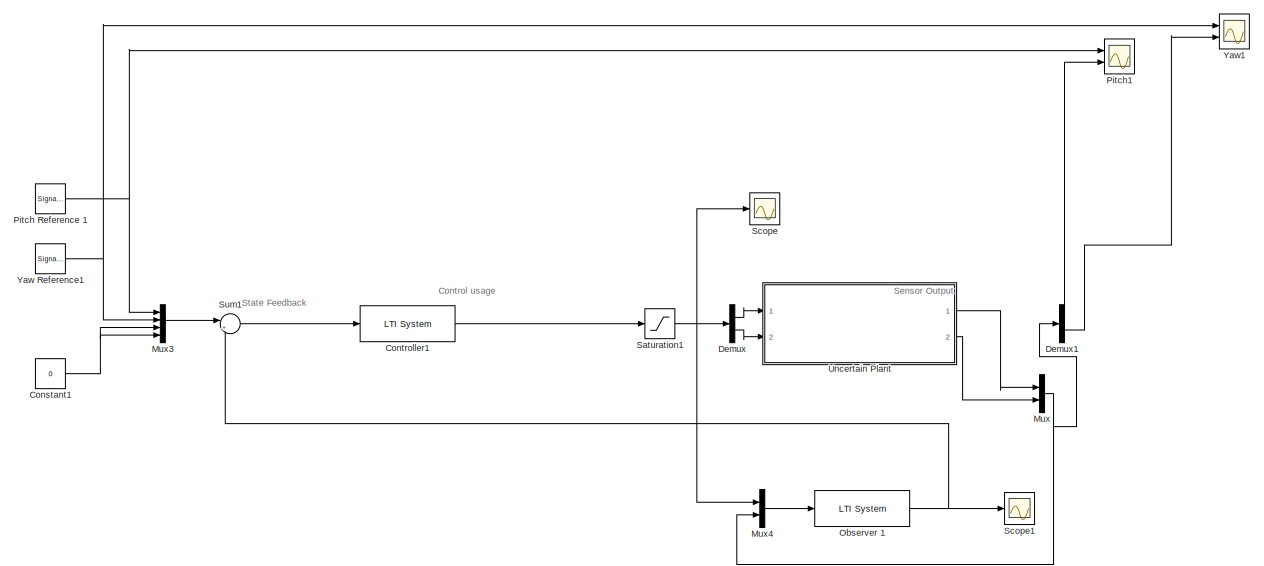
[diagram: root canvas - part 1/4, full width, top band]
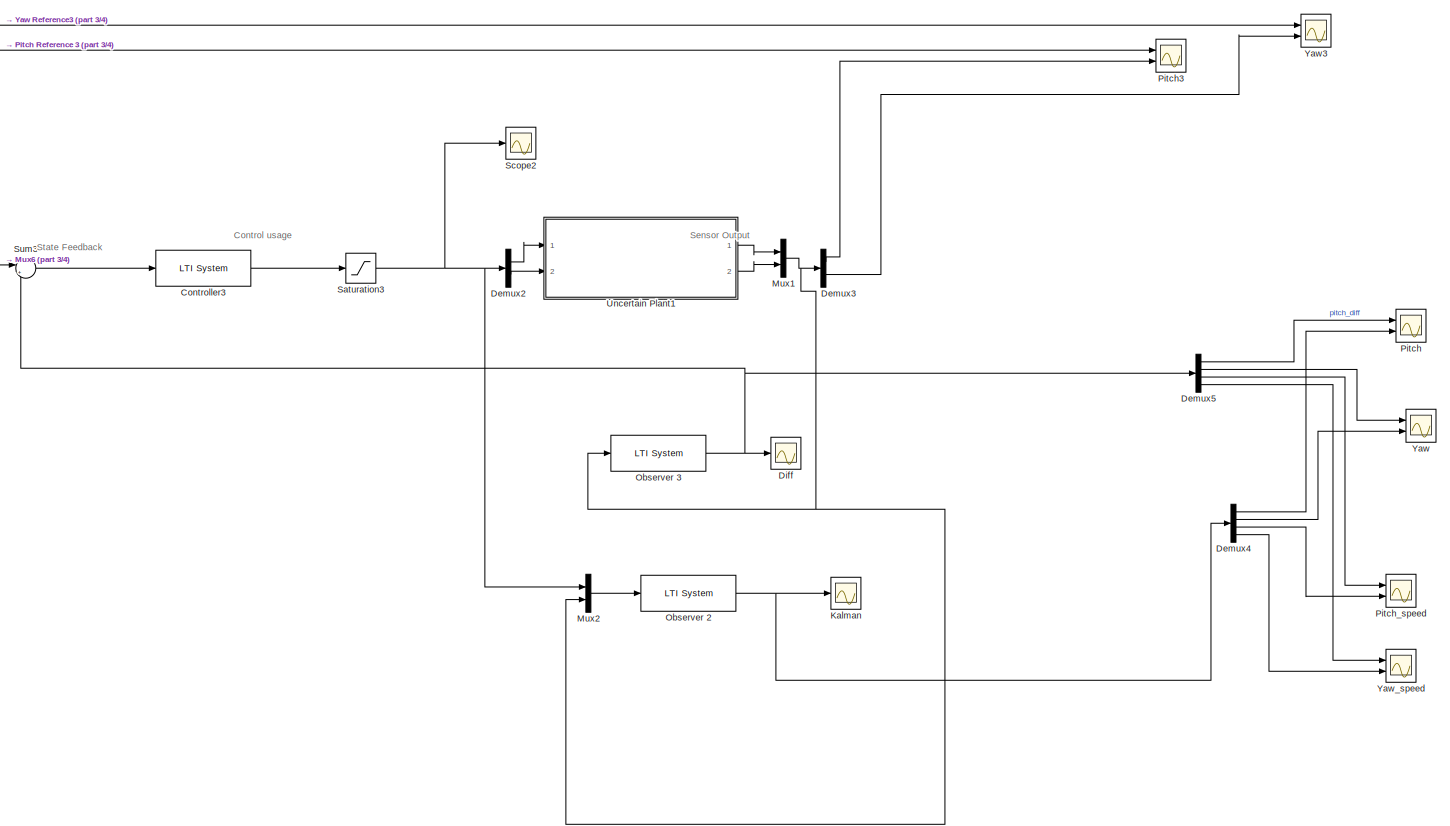
[diagram: root canvas - part 2/4, full width, middle band]
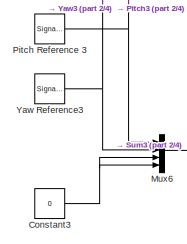
[diagram: root canvas - part 3/4, middle left region]
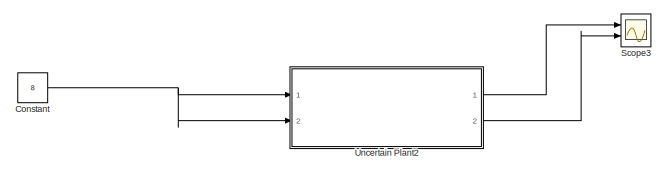
[diagram: root canvas - part 4/4, bottom center region]
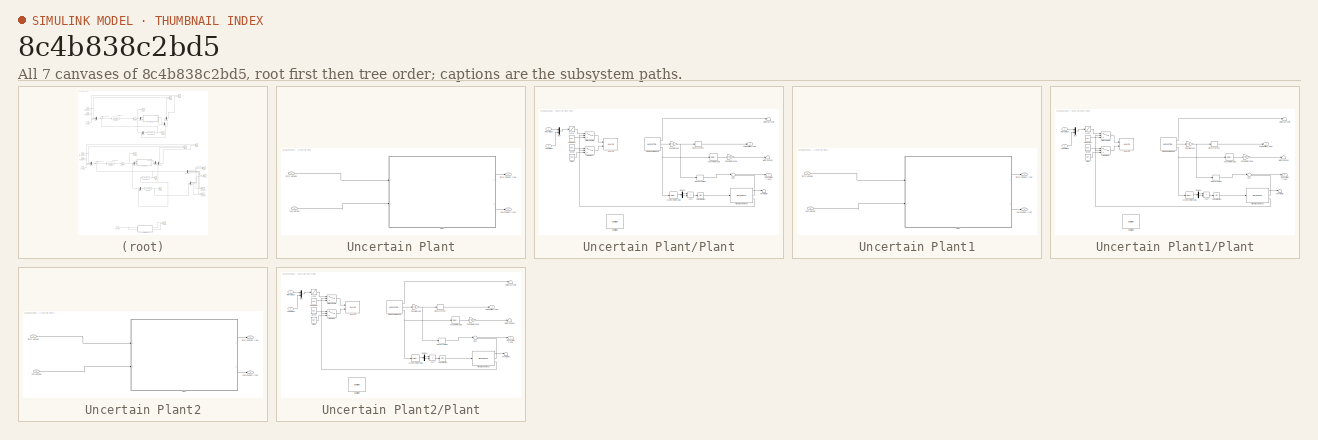
[diagram: thumbnail index - all 7 canvases of the model, root first then tree order]
MODEL slx_8c4b838c2bd5
KIND model
CONFIG AbsTol = auto
CONFIG EnableMultiTasking = on
CONFIG FixedStep = 0.002
CONFIG MaxStep = auto
CONFIG MinStep = auto
CONFIG RelTol = 1e-3
CONFIG SampleTimeConstraint = Unconstrained
CONFIG Solver = ode1
CONFIG SolverName = ode1
CONFIG StartTime = 0.0
CONFIG StopTime = 50
BLOCK [Constant] Constant
  Commented = on
  Value = 8
BLOCK [Constant] Constant1
  Commented = on
  Value = 0
BLOCK [Constant] Constant3
  Value = 0
BLOCK [Reference] Controller1  REF=cstblocks/LTI System
  Commented = on
  Ports = [1, 1]
  SourceBlock = cstblocks/LTI System
  SourceProductBaseCode = CT
  SourceProductName = Control System Toolbox
  SourceType = LTI Block
BLOCK [Reference] Controller3  REF=cstblocks/LTI System
  Ports = [1, 1]
  SourceBlock = cstblocks/LTI System
  SourceProductBaseCode = CT
  SourceProductName = Control System Toolbox
  SourceType = LTI Block
BLOCK [Demux] Demux
  Commented = on
  DisplayOption = bar
  Outputs = 2
  Ports = [1, 2]
BLOCK [Demux] Demux1
  Commented = on
  DisplayOption = bar
  Outputs = 2
  Ports = [1, 2]
BLOCK [Demux] Demux2
  DisplayOption = bar
  Outputs = 2
  Ports = [1, 2]
BLOCK [Demux] Demux3
  DisplayOption = bar
  Outputs = 2
  Ports = [1, 2]
BLOCK [Demux] Demux4
  DisplayOption = bar
  Ports = [1, 4]
BLOCK [Demux] Demux5
  DisplayOption = bar
  Ports = [1, 4]
BLOCK [Scope] Diff
  Floating = off
  NumInputPorts = 1
  Ports = [1]
  ScopeSpecificationString = Simulink.scopes.TimeScopeBlockCfg('CurrentConfiguration', extmgr.ConfigurationSet(extmgr.Configuration('Core','General UI',true,'FigureColor',[1 1 1]),extmgr.Configuration('Core','Source UI',true),extmgr.Configuration('Sources','WiredSimulink',true,'DataLoggingVariableName','ScopeData5'),extmgr.Configuration('Visuals','Time Domain',true,'SerializedDisplays',{struct('MinYLimReal','-2.33165','MaxYLi...<+1640ch>
BLOCK [Scope] Kalman 
  Floating = off
  NumInputPorts = 1
  Ports = [1]
  ScopeSpecificationString = Simulink.scopes.TimeScopeBlockCfg('CurrentConfiguration', extmgr.ConfigurationSet(extmgr.Configuration('Core','General UI',true,'FigureColor',[1 1 1]),extmgr.Configuration('Core','Source UI',true),extmgr.Configuration('Sources','WiredSimulink',true,'DataLoggingVariableName','ScopeData7'),extmgr.Configuration('Visuals','Time Domain',true,'SerializedDisplays',{struct('MinYLimReal','-7.47445','MaxYLi...<+1528ch>
BLOCK [Mux] Mux
  Commented = on
  DisplayOption = bar
  Inputs = 2
  Ports = [2, 1]
BLOCK [Mux] Mux1
  DisplayOption = bar
  Inputs = 2
  Ports = [2, 1]
BLOCK [Mux] Mux2
  DisplayOption = bar
  Inputs = 2
  Ports = [2, 1]
BLOCK [Mux] Mux3
  Commented = on
  DisplayOption = bar
  Ports = [4, 1]
BLOCK [Mux] Mux4
  Commented = on
  DisplayOption = bar
  Inputs = 2
  Ports = [2, 1]
BLOCK [Mux] Mux6
  DisplayOption = bar
  Ports = [4, 1]
BLOCK [Reference] Observer 1  REF=cstblocks/LTI System
  Commented = on
  Ports = [1, 1]
  SourceBlock = cstblocks/LTI System
  SourceProductBaseCode = CT
  SourceProductName = Control System Toolbox
  SourceType = LTI Block
BLOCK [Reference] Observer 2  REF=cstblocks/LTI System
  Ports = [1, 1]
  SourceBlock = cstblocks/LTI System
  SourceProductBaseCode = CT
  SourceProductName = Control System Toolbox
  SourceType = LTI Block
BLOCK [Reference] Observer 3  REF=cstblocks/LTI System
  Ports = [1, 1]
  SourceBlock = cstblocks/LTI System
  SourceProductBaseCode = CT
  SourceProductName = Control System Toolbox
  SourceType = LTI Block
BLOCK [Scope] Pitch
  Floating = off
  NumInputPorts = 2
  Ports = [2]
  ScopeSpecificationString = Simulink.scopes.TimeScopeBlockCfg('CurrentConfiguration', extmgr.ConfigurationSet(extmgr.Configuration('Core','General UI',true),extmgr.Configuration('Core','Source UI',true),extmgr.Configuration('Sources','WiredSimulink',true,'DataLoggingVariableName','ScopeData8'),extmgr.Configuration('Visuals','Time Domain',true,'SerializedDisplays',{struct('MinYLimReal','-3.63083','MaxYLimReal','3.5236','YLabe...<+1404ch>
BLOCK [SignalGenerator] Pitch Reference 1
  Amplitude = pitch_amp
  Commented = on
  Frequency = pitch_freq
  Ports = [0, 1]
  Units = rad/sec
  WaveForm = square
BLOCK [SignalGenerator] Pitch Reference 3
  Amplitude = pitch_amp
  Frequency = pitch_freq
  Ports = [0, 1]
  Units = rad/sec
  WaveForm = square
BLOCK [Scope] Pitch1
  Commented = on
  Floating = off
  NumInputPorts = 2
  Ports = [2]
  ScopeSpecificationString = Simulink.scopes.TimeScopeBlockCfg('CurrentConfiguration', extmgr.ConfigurationSet(extmgr.Configuration('Core','General UI',true,'FigureColor',[1 1 1]),extmgr.Configuration('Core','Source UI',true),extmgr.Configuration('Sources','WiredSimulink',true,'DataLoggingVariableName','ScopeData1'),extmgr.Configuration('Visuals','Time Domain',true,'SerializedDisplays',{struct('MinYLimReal','-0.70592','MaxYLi...<+1503ch>
BLOCK [Scope] Pitch3
  Floating = off
  NumInputPorts = 2
  Ports = [2]
  ScopeSpecificationString = Simulink.scopes.TimeScopeBlockCfg('CurrentConfiguration', extmgr.ConfigurationSet(extmgr.Configuration('Core','General UI',true,'FigureColor',[1 1 1]),extmgr.Configuration('Core','Source UI',true),extmgr.Configuration('Sources','WiredSimulink',true,'DataLoggingVariableName','ScopeData4'),extmgr.Configuration('Visuals','Time Domain',true,'SerializedDisplays',{struct('MinYLimReal','-0.85025','MaxYLi...<+1499ch>
BLOCK [Scope] Pitch_speed
  Floating = off
  NumInputPorts = 2
  Ports = [2]
  ScopeSpecificationString = Simulink.scopes.TimeScopeBlockCfg('CurrentConfiguration', extmgr.ConfigurationSet(extmgr.Configuration('Core','General UI',true),extmgr.Configuration('Core','Source UI',true),extmgr.Configuration('Sources','WiredSimulink',true,'DataLoggingVariableName','ScopeData10'),extmgr.Configuration('Visuals','Time Domain',true,'SerializedDisplays',{struct('MinYLimReal','-4.47207','MaxYLimReal','4.75336','YLa...<+1406ch>
BLOCK [Saturate] Saturation1
  Commented = on
  InputPortMap = u0
  LowerLimit = -25
  Ports = [1, 1]
  UpperLimit = 25
BLOCK [Saturate] Saturation3
  InputPortMap = u0
  LowerLimit = -25
  Ports = [1, 1]
  UpperLimit = 25
BLOCK [Scope] Scope
  Commented = on
  Floating = off
  NumInputPorts = 1
  Ports = [1]
  ScopeSpecificationString = Simulink.scopes.TimeScopeBlockCfg('CurrentConfiguration', extmgr.ConfigurationSet(extmgr.Configuration('Core','General UI',true),extmgr.Configuration('Core','Source UI',true),extmgr.Configuration('Sources','WiredSimulink',true),extmgr.Configuration('Visuals','Time Domain',true,'SerializedDisplays',{struct('MinYLimReal','-31.25','MaxYLimReal','31.25','YLabelReal','','MinYLimMag','0.00000','MaxYLimM...<+1364ch>
BLOCK [Scope] Scope1
  Commented = on
  Floating = off
  NumInputPorts = 1
  Ports = [1]
  ScopeSpecificationString = Simulink.scopes.TimeScopeBlockCfg('CurrentConfiguration', extmgr.ConfigurationSet(extmgr.Configuration('Core','General UI',true,'FigureColor',[1 1 1]),extmgr.Configuration('Core','Source UI',true),extmgr.Configuration('Sources','WiredSimulink',true,'DataLoggingVariableName','ScopeData2'),extmgr.Configuration('Visuals','Time Domain',true,'SerializedDisplays',{struct('MinYLimReal','-2.51916','MaxYLi...<+1502ch>
BLOCK [Scope] Scope2
  Floating = off
  NumInputPorts = 1
  Ports = [1]
  ScopeSpecificationString = Simulink.scopes.TimeScopeBlockCfg('CurrentConfiguration', extmgr.ConfigurationSet(extmgr.Configuration('Core','General UI',true),extmgr.Configuration('Core','Source UI',true),extmgr.Configuration('Sources','WiredSimulink',true,'DataLoggingVariableName','ScopeData12'),extmgr.Configuration('Visuals','Time Domain',true,'SerializedDisplays',{struct('MinYLimReal','-31.25','MaxYLimReal','31.25','YLabelR...<+1403ch>
BLOCK [Scope] Scope3
  Commented = on
  Floating = off
  NumInputPorts = 2
  Ports = [2]
  ScopeSpecificationString = Simulink.scopes.TimeScopeBlockCfg('CurrentConfiguration', extmgr.ConfigurationSet(extmgr.Configuration('Core','General UI',true),extmgr.Configuration('Core','Source UI',true),extmgr.Configuration('Sources','WiredSimulink',true,'DataLoggingVariableName','ScopeData13'),extmgr.Configuration('Visuals','Time Domain',true),extmgr.Configuration('Tools','Plot Navigation',true),extmgr.Configuration('Tools'...<+41ch>
BLOCK [Sum] Sum1
  Commented = on
  IconShape = round
  InputSameDT = off
  Inputs = |+-
  OutDataTypeStr = Inherit: Inherit via internal rule
  Ports = [2, 1]
  SaturateOnIntegerOverflow = off
BLOCK [Sum] Sum3
  IconShape = round
  InputSameDT = off
  Inputs = |+-
  OutDataTypeStr = Inherit: Inherit via internal rule
  Ports = [2, 1]
  SaturateOnIntegerOverflow = off
BLOCK [SubSystem] Uncertain Plant
  Commented = on
  Ports = [2, 2]
  RequestExecContextInheritance = off
BLOCK [Outport] Uncertain Plant/Pitch Position (rad)
  IconDisplay = Port number
BLOCK [Inport] Uncertain Plant/Pitch Voltage
  IconDisplay = Port number
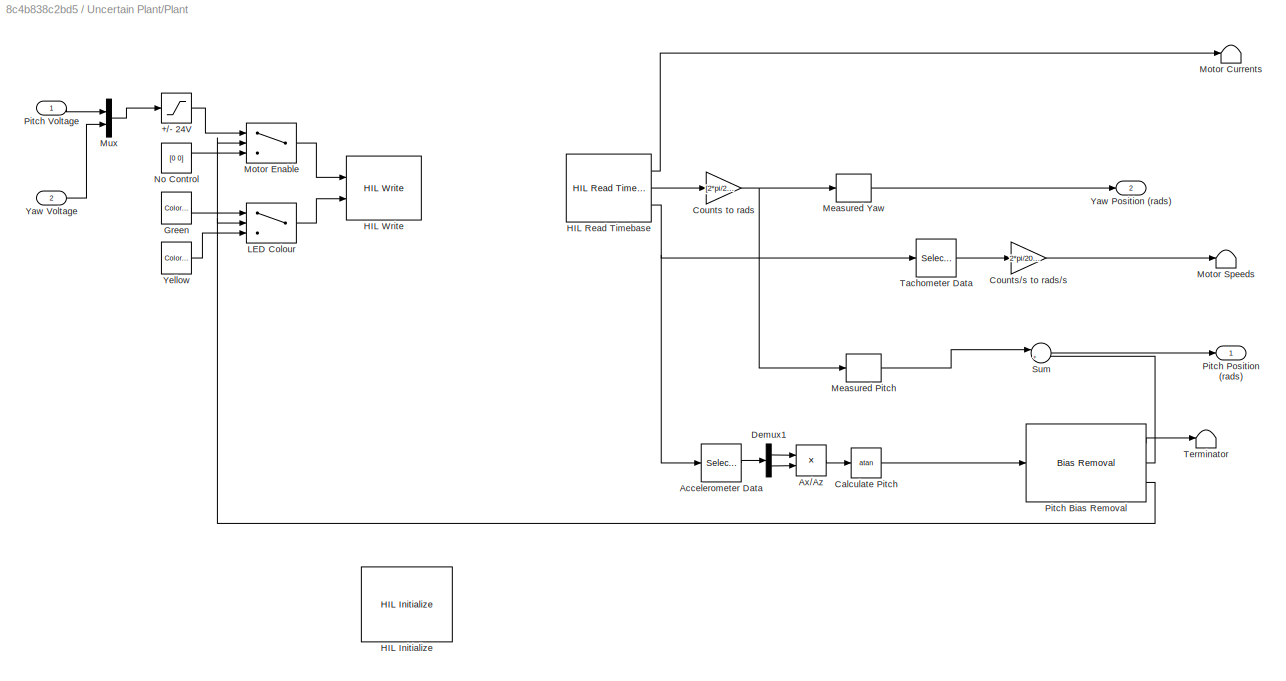
BLOCK [SubSystem] Uncertain Plant/Plant
  Ports = [2, 2]
  RequestExecContextInheritance = off
BLOCK [Saturate] Uncertain Plant/Plant/+//- 24V
  InputPortMap = u0
  LowerLimit = -24
  Ports = [1, 1]
  UpperLimit = 24
BLOCK [Selector] Uncertain Plant/Plant/Accelerometer Data
  IndexOptions = Index vector (dialog)
  Indices = [1 2]
  InputPortWidth = 4
  OutputSizes = 1
  Ports = [1, 1]
BLOCK [Product] Uncertain Plant/Plant/Ax//Az
  InputSameDT = off
  Inputs = */
  OutDataTypeStr = Inherit: Inherit via internal rule
  Ports = [2, 1]
  RndMeth = Floor
  SaturateOnIntegerOverflow = off
BLOCK [Trigonometry] Uncertain Plant/Plant/Calculate Pitch
  Operator = atan
  Ports = [1, 1]
BLOCK [Gain] Uncertain Plant/Plant/Counts to rads
  Gain = [2*pi/2048 2*pi/4096]
  OutDataTypeStr = Inherit: Inherit via internal rule
  ParamDataTypeStr = Inherit: Inherit via internal rule
  SaturateOnIntegerOverflow = off
BLOCK [Gain] Uncertain Plant/Plant/Counts//s to rads//s
  Gain = 2*pi/2048
  OutDataTypeStr = Inherit: Inherit via internal rule
  ParamDataTypeStr = Inherit: Inherit via internal rule
  SaturateOnIntegerOverflow = off
BLOCK [Demux] Uncertain Plant/Plant/Demux1
  DisplayOption = bar
  Outputs = 2
  Ports = [1, 2]
BLOCK [Reference] Uncertain Plant/Plant/Green  REF=quarc_library/Sources/Signals/Color Constant
  Ports = [0, 1]
  SourceBlock = quarc_library/Sources/Signals/Color Constant
  SourceProductName = QUARC Targets
  SourceType = Color Constant
BLOCK [Reference] Uncertain Plant/Plant/HIL Initialize  REF=quarc_library/Data Acquisition/Generic/Configuration/HIL Initialize
  AttributesFormatString = %<object_name> (%<board_type>-%<board_number>)
  Ports = []
  Priority = -99
  SourceBlock = quarc_library/Data Acquisition/Generic/Configuration/HIL Initialize
  SourceProductName = QUARC Targets
  SourceType = HIL Initialize
  UserDataPersistent = on
BLOCK [Reference] Uncertain Plant/Plant/HIL Read Timebase  REF=quarc_library/Data Acquisition/Generic/Timebases/HIL Read
Timebase
  AttributesFormatString = (%<object_name>)
  Ports = [0, 3]
  SourceBlock = quarc_library/Data Acquisition/Generic/Timebases/HIL Read\nTimebase
  SourceProductName = QUARC Targets
  SourceType = HIL Read Timebase
  UserDataPersistent = on
BLOCK [Reference] Uncertain Plant/Plant/HIL Write  REF=quarc_library/Data Acquisition/Generic/Immediate I//O/HIL Write
  AttributesFormatString = (%<object_name>)
  Ports = [2]
  SourceBlock = quarc_library/Data Acquisition/Generic/Immediate I//O/HIL Write
  SourceProductName = QUARC Targets
  SourceType = HIL Write
  UserDataPersistent = on
BLOCK [Switch] Uncertain Plant/Plant/LED Colour
  Criteria = u2 > Threshold
  InputSameDT = off
  SaturateOnIntegerOverflow = off
BLOCK [Selector] Uncertain Plant/Plant/Measured Pitch
  IndexOptions = Index vector (dialog)
  Indices = [1]
  InputPortWidth = 2
  OutputSizes = 1
  Ports = [1, 1]
BLOCK [Selector] Uncertain Plant/Plant/Measured Yaw
  IndexOptions = Index vector (dialog)
  Indices = [2]
  InputPortWidth = 2
  OutputSizes = 1
  Ports = [1, 1]
BLOCK [Terminator] Uncertain Plant/Plant/Motor Currents
BLOCK [Switch] Uncertain Plant/Plant/Motor Enable
  Criteria = u2 > Threshold
  InputSameDT = off
  SaturateOnIntegerOverflow = off
BLOCK [Terminator] Uncertain Plant/Plant/Motor Speeds
BLOCK [Mux] Uncertain Plant/Plant/Mux
  DisplayOption = bar
  Inputs = 2
  Ports = [2, 1]
BLOCK [Constant] Uncertain Plant/Plant/No Control
  Value = [0 0]
BLOCK [Reference] Uncertain Plant/Plant/Pitch Bias Removal  REF=quarc_library/Discrete/Bias Removal
  Ports = [1, 3]
  SourceBlock = quarc_library/Discrete/Bias Removal
  SourceProductName = QUARC Targets
  SourceType = Bias Removal
BLOCK [Outport] Uncertain Plant/Plant/Pitch Position (rads)
  IconDisplay = Port number
BLOCK [Inport] Uncertain Plant/Plant/Pitch Voltage
  IconDisplay = Port number
BLOCK [Sum] Uncertain Plant/Plant/Sum
  IconShape = round
  InputSameDT = off
  Inputs = |+-
  OutDataTypeStr = Inherit: Inherit via internal rule
  Ports = [2, 1]
  SaturateOnIntegerOverflow = off
BLOCK [Selector] Uncertain Plant/Plant/Tachometer Data
  IndexOptions = Index vector (dialog)
  Indices = [3 4]
  InputPortWidth = 4
  OutputSizes = 1
  Ports = [1, 1]
BLOCK [Terminator] Uncertain Plant/Plant/Terminator
BLOCK [Outport] Uncertain Plant/Plant/Yaw Position (rads)
  IconDisplay = Port number
  Port = 2
BLOCK [Inport] Uncertain Plant/Plant/Yaw Voltage
  IconDisplay = Port number
  Port = 2
BLOCK [Reference] Uncertain Plant/Plant/Yellow  REF=quarc_library/Sources/Signals/Color Constant
  Ports = [0, 1]
  SourceBlock = quarc_library/Sources/Signals/Color Constant
  SourceProductName = QUARC Targets
  SourceType = Color Constant
BLOCK [Outport] Uncertain Plant/Yaw Position (rad)
  IconDisplay = Port number
  Port = 2
BLOCK [Inport] Uncertain Plant/Yaw Voltage
  IconDisplay = Port number
  Port = 2
BLOCK [SubSystem] Uncertain Plant1
  Ports = [2, 2]
  RequestExecContextInheritance = off
BLOCK [Outport] Uncertain Plant1/Pitch Position (rad)
  IconDisplay = Port number
BLOCK [Inport] Uncertain Plant1/Pitch Voltage
  IconDisplay = Port number
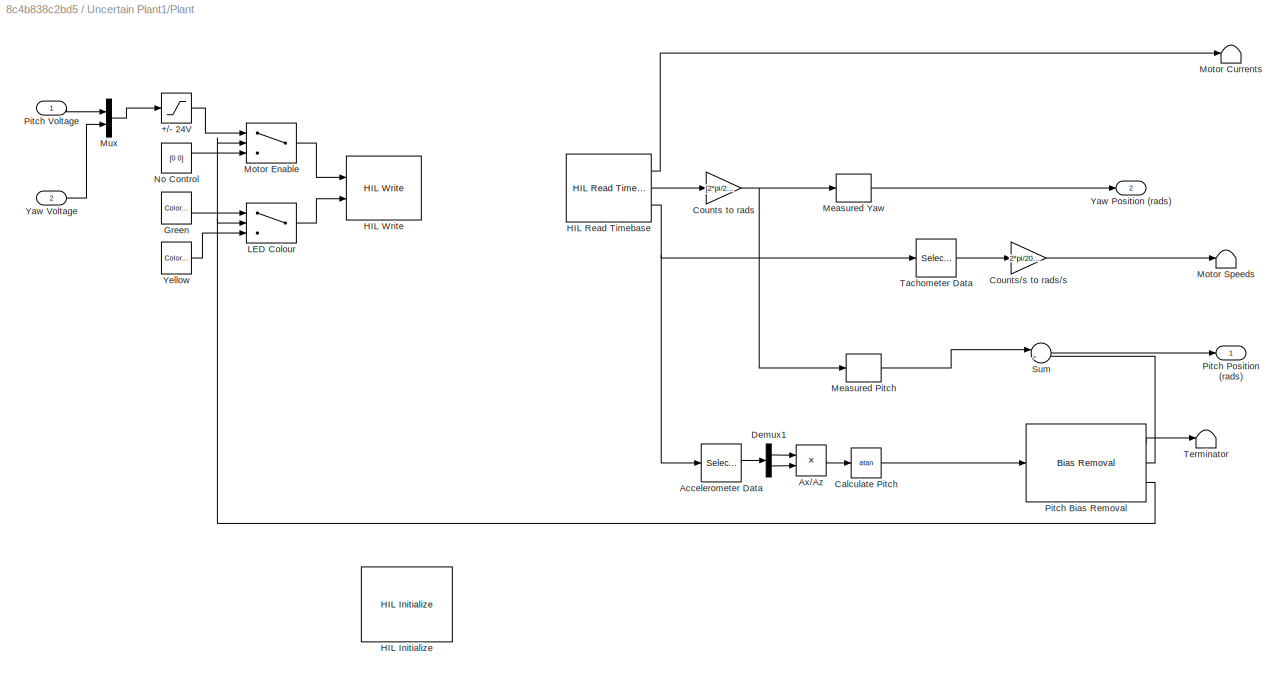
BLOCK [SubSystem] Uncertain Plant1/Plant
  Ports = [2, 2]
  RequestExecContextInheritance = off
BLOCK [Saturate] Uncertain Plant1/Plant/+//- 24V
  InputPortMap = u0
  LowerLimit = -24
  Ports = [1, 1]
  UpperLimit = 24
BLOCK [Selector] Uncertain Plant1/Plant/Accelerometer Data
  IndexOptions = Index vector (dialog)
  Indices = [1 2]
  InputPortWidth = 4
  OutputSizes = 1
  Ports = [1, 1]
BLOCK [Product] Uncertain Plant1/Plant/Ax//Az
  InputSameDT = off
  Inputs = */
  OutDataTypeStr = Inherit: Inherit via internal rule
  Ports = [2, 1]
  RndMeth = Floor
  SaturateOnIntegerOverflow = off
BLOCK [Trigonometry] Uncertain Plant1/Plant/Calculate Pitch
  Operator = atan
  Ports = [1, 1]
BLOCK [Gain] Uncertain Plant1/Plant/Counts to rads
  Gain = [2*pi/2048 2*pi/4096]
  OutDataTypeStr = Inherit: Inherit via internal rule
  ParamDataTypeStr = Inherit: Inherit via internal rule
  SaturateOnIntegerOverflow = off
BLOCK [Gain] Uncertain Plant1/Plant/Counts//s to rads//s
  Gain = 2*pi/2048
  OutDataTypeStr = Inherit: Inherit via internal rule
  ParamDataTypeStr = Inherit: Inherit via internal rule
  SaturateOnIntegerOverflow = off
BLOCK [Demux] Uncertain Plant1/Plant/Demux1
  DisplayOption = bar
  Outputs = 2
  Ports = [1, 2]
BLOCK [Reference] Uncertain Plant1/Plant/Green  REF=quarc_library/Sources/Signals/Color Constant
  Ports = [0, 1]
  SourceBlock = quarc_library/Sources/Signals/Color Constant
  SourceProductName = QUARC Targets
  SourceType = Color Constant
BLOCK [Reference] Uncertain Plant1/Plant/HIL Initialize  REF=quarc_library/Data Acquisition/Generic/Configuration/HIL Initialize
  AttributesFormatString = %<object_name> (%<board_type>-%<board_number>)
  Ports = []
  Priority = -99
  SourceBlock = quarc_library/Data Acquisition/Generic/Configuration/HIL Initialize
  SourceProductName = QUARC Targets
  SourceType = HIL Initialize
  UserDataPersistent = on
BLOCK [Reference] Uncertain Plant1/Plant/HIL Read Timebase  REF=quarc_library/Data Acquisition/Generic/Timebases/HIL Read
Timebase
  AttributesFormatString = (%<object_name>)
  Ports = [0, 3]
  SourceBlock = quarc_library/Data Acquisition/Generic/Timebases/HIL Read\nTimebase
  SourceProductName = QUARC Targets
  SourceType = HIL Read Timebase
  UserDataPersistent = on
BLOCK [Reference] Uncertain Plant1/Plant/HIL Write  REF=quarc_library/Data Acquisition/Generic/Immediate I//O/HIL Write
  AttributesFormatString = (%<object_name>)
  Ports = [2]
  SourceBlock = quarc_library/Data Acquisition/Generic/Immediate I//O/HIL Write
  SourceProductName = QUARC Targets
  SourceType = HIL Write
  UserDataPersistent = on
BLOCK [Switch] Uncertain Plant1/Plant/LED Colour
  Criteria = u2 > Threshold
  InputSameDT = off
  SaturateOnIntegerOverflow = off
BLOCK [Selector] Uncertain Plant1/Plant/Measured Pitch
  IndexOptions = Index vector (dialog)
  Indices = [1]
  InputPortWidth = 2
  OutputSizes = 1
  Ports = [1, 1]
BLOCK [Selector] Uncertain Plant1/Plant/Measured Yaw
  IndexOptions = Index vector (dialog)
  Indices = [2]
  InputPortWidth = 2
  OutputSizes = 1
  Ports = [1, 1]
BLOCK [Terminator] Uncertain Plant1/Plant/Motor Currents
BLOCK [Switch] Uncertain Plant1/Plant/Motor Enable
  Criteria = u2 > Threshold
  InputSameDT = off
  SaturateOnIntegerOverflow = off
BLOCK [Terminator] Uncertain Plant1/Plant/Motor Speeds
BLOCK [Mux] Uncertain Plant1/Plant/Mux
  DisplayOption = bar
  Inputs = 2
  Ports = [2, 1]
BLOCK [Constant] Uncertain Plant1/Plant/No Control
  Value = [0 0]
BLOCK [Reference] Uncertain Plant1/Plant/Pitch Bias Removal  REF=quarc_library/Discrete/Bias Removal
  Ports = [1, 3]
  SourceBlock = quarc_library/Discrete/Bias Removal
  SourceProductName = QUARC Targets
  SourceType = Bias Removal
BLOCK [Outport] Uncertain Plant1/Plant/Pitch Position (rads)
  IconDisplay = Port number
BLOCK [Inport] Uncertain Plant1/Plant/Pitch Voltage
  IconDisplay = Port number
BLOCK [Sum] Uncertain Plant1/Plant/Sum
  IconShape = round
  InputSameDT = off
  Inputs = |+-
  OutDataTypeStr = Inherit: Inherit via internal rule
  Ports = [2, 1]
  SaturateOnIntegerOverflow = off
BLOCK [Selector] Uncertain Plant1/Plant/Tachometer Data
  IndexOptions = Index vector (dialog)
  Indices = [3 4]
  InputPortWidth = 4
  OutputSizes = 1
  Ports = [1, 1]
BLOCK [Terminator] Uncertain Plant1/Plant/Terminator
BLOCK [Outport] Uncertain Plant1/Plant/Yaw Position (rads)
  IconDisplay = Port number
  Port = 2
BLOCK [Inport] Uncertain Plant1/Plant/Yaw Voltage
  IconDisplay = Port number
  Port = 2
BLOCK [Reference] Uncertain Plant1/Plant/Yellow  REF=quarc_library/Sources/Signals/Color Constant
  Ports = [0, 1]
  SourceBlock = quarc_library/Sources/Signals/Color Constant
  SourceProductName = QUARC Targets
  SourceType = Color Constant
BLOCK [Outport] Uncertain Plant1/Yaw Position (rad)
  IconDisplay = Port number
  Port = 2
BLOCK [Inport] Uncertain Plant1/Yaw Voltage
  IconDisplay = Port number
  Port = 2
BLOCK [SubSystem] Uncertain Plant2
  Commented = on
  Ports = [2, 2]
  RequestExecContextInheritance = off
BLOCK [Outport] Uncertain Plant2/Pitch Position (rad)
  IconDisplay = Port number
BLOCK [Inport] Uncertain Plant2/Pitch Voltage
  IconDisplay = Port number
BLOCK [SubSystem] Uncertain Plant2/Plant
  Ports = [2, 2]
  RequestExecContextInheritance = off
BLOCK [Saturate] Uncertain Plant2/Plant/+//- 24V
  InputPortMap = u0
  LowerLimit = -24
  Ports = [1, 1]
  UpperLimit = 24
BLOCK [Selector] Uncertain Plant2/Plant/Accelerometer Data
  IndexOptions = Index vector (dialog)
  Indices = [1 2]
  InputPortWidth = 4
  OutputSizes = 1
  Ports = [1, 1]
BLOCK [Product] Uncertain Plant2/Plant/Ax//Az
  InputSameDT = off
  Inputs = */
  OutDataTypeStr = Inherit: Inherit via internal rule
  Ports = [2, 1]
  RndMeth = Floor
  SaturateOnIntegerOverflow = off
BLOCK [Trigonometry] Uncertain Plant2/Plant/Calculate Pitch
  Operator = atan
  Ports = [1, 1]
BLOCK [Gain] Uncertain Plant2/Plant/Counts to rads
  Gain = [2*pi/2048 2*pi/4096]
  OutDataTypeStr = Inherit: Inherit via internal rule
  ParamDataTypeStr = Inherit: Inherit via internal rule
  SaturateOnIntegerOverflow = off
BLOCK [Gain] Uncertain Plant2/Plant/Counts//s to rads//s
  Gain = 2*pi/2048
  OutDataTypeStr = Inherit: Inherit via internal rule
  ParamDataTypeStr = Inherit: Inherit via internal rule
  SaturateOnIntegerOverflow = off
BLOCK [Demux] Uncertain Plant2/Plant/Demux1
  DisplayOption = bar
  Outputs = 2
  Ports = [1, 2]
BLOCK [Reference] Uncertain Plant2/Plant/Green  REF=quarc_library/Sources/Signals/Color Constant
  Ports = [0, 1]
  SourceBlock = quarc_library/Sources/Signals/Color Constant
  SourceProductName = QUARC Targets
  SourceType = Color Constant
BLOCK [Reference] Uncertain Plant2/Plant/HIL Initialize  REF=quarc_library/Data Acquisition/Generic/Configuration/HIL Initialize
  AttributesFormatString = %<object_name> (%<board_type>-%<board_number>)
  Ports = []
  Priority = -99
  SourceBlock = quarc_library/Data Acquisition/Generic/Configuration/HIL Initialize
  SourceProductName = QUARC Targets
  SourceType = HIL Initialize
  UserDataPersistent = on
BLOCK [Reference] Uncertain Plant2/Plant/HIL Read Timebase  REF=quarc_library/Data Acquisition/Generic/Timebases/HIL Read
Timebase
  AttributesFormatString = (%<object_name>)
  Ports = [0, 3]
  SourceBlock = quarc_library/Data Acquisition/Generic/Timebases/HIL Read\nTimebase
  SourceProductName = QUARC Targets
  SourceType = HIL Read Timebase
  UserDataPersistent = on
BLOCK [Reference] Uncertain Plant2/Plant/HIL Write  REF=quarc_library/Data Acquisition/Generic/Immediate I//O/HIL Write
  AttributesFormatString = (%<object_name>)
  Ports = [2]
  SourceBlock = quarc_library/Data Acquisition/Generic/Immediate I//O/HIL Write
  SourceProductName = QUARC Targets
  SourceType = HIL Write
  UserDataPersistent = on
BLOCK [Switch] Uncertain Plant2/Plant/LED Colour
  Criteria = u2 > Threshold
  InputSameDT = off
  SaturateOnIntegerOverflow = off
BLOCK [Selector] Uncertain Plant2/Plant/Measured Pitch
  IndexOptions = Index vector (dialog)
  Indices = [1]
  InputPortWidth = 2
  OutputSizes = 1
  Ports = [1, 1]
BLOCK [Selector] Uncertain Plant2/Plant/Measured Yaw
  IndexOptions = Index vector (dialog)
  Indices = [2]
  InputPortWidth = 2
  OutputSizes = 1
  Ports = [1, 1]
BLOCK [Terminator] Uncertain Plant2/Plant/Motor Currents
BLOCK [Switch] Uncertain Plant2/Plant/Motor Enable
  Criteria = u2 > Threshold
  InputSameDT = off
  SaturateOnIntegerOverflow = off
BLOCK [Terminator] Uncertain Plant2/Plant/Motor Speeds
BLOCK [Mux] Uncertain Plant2/Plant/Mux
  DisplayOption = bar
  Inputs = 2
  Ports = [2, 1]
BLOCK [Constant] Uncertain Plant2/Plant/No Control
  Value = [0 0]
BLOCK [Reference] Uncertain Plant2/Plant/Pitch Bias Removal  REF=quarc_library/Discrete/Bias Removal
  Ports = [1, 3]
  SourceBlock = quarc_library/Discrete/Bias Removal
  SourceProductName = QUARC Targets
  SourceType = Bias Removal
BLOCK [Outport] Uncertain Plant2/Plant/Pitch Position (rads)
  IconDisplay = Port number
BLOCK [Inport] Uncertain Plant2/Plant/Pitch Voltage
  IconDisplay = Port number
BLOCK [Sum] Uncertain Plant2/Plant/Sum
  IconShape = round
  InputSameDT = off
  Inputs = |+-
  OutDataTypeStr = Inherit: Inherit via internal rule
  Ports = [2, 1]
  SaturateOnIntegerOverflow = off
BLOCK [Selector] Uncertain Plant2/Plant/Tachometer Data
  IndexOptions = Index vector (dialog)
  Indices = [3 4]
  InputPortWidth = 4
  OutputSizes = 1
  Ports = [1, 1]
BLOCK [Terminator] Uncertain Plant2/Plant/Terminator
BLOCK [Outport] Uncertain Plant2/Plant/Yaw Position (rads)
  IconDisplay = Port number
  Port = 2
BLOCK [Inport] Uncertain Plant2/Plant/Yaw Voltage
  IconDisplay = Port number
  Port = 2
BLOCK [Reference] Uncertain Plant2/Plant/Yellow  REF=quarc_library/Sources/Signals/Color Constant
  Ports = [0, 1]
  SourceBlock = quarc_library/Sources/Signals/Color Constant
  SourceProductName = QUARC Targets
  SourceType = Color Constant
BLOCK [Outport] Uncertain Plant2/Yaw Position (rad)
  IconDisplay = Port number
  Port = 2
BLOCK [Inport] Uncertain Plant2/Yaw Voltage
  IconDisplay = Port number
  Port = 2
BLOCK [Scope] Yaw
  Floating = off
  NumInputPorts = 2
  Ports = [2]
  ScopeSpecificationString = Simulink.scopes.TimeScopeBlockCfg('CurrentConfiguration', extmgr.ConfigurationSet(extmgr.Configuration('Core','General UI',true),extmgr.Configuration('Core','Source UI',true),extmgr.Configuration('Sources','WiredSimulink',true,'DataLoggingVariableName','ScopeData9'),extmgr.Configuration('Visuals','Time Domain',true,'SerializedDisplays',{struct('MinYLimReal','-1.08901','MaxYLimReal','1.03516','YLab...<+1377ch>
BLOCK [SignalGenerator] Yaw Reference1
  Amplitude = yaw_amp
  Commented = on
  Frequency = yaw_freq
  Ports = [0, 1]
  Units = rad/sec
  WaveForm = square
BLOCK [SignalGenerator] Yaw Reference3
  Amplitude = yaw_amp
  Frequency = yaw_freq
  Ports = [0, 1]
  Units = rad/sec
  WaveForm = square
BLOCK [Scope] Yaw1
  Commented = on
  Floating = off
  NumInputPorts = 2
  Ports = [2]
  ScopeSpecificationString = Simulink.scopes.TimeScopeBlockCfg('CurrentConfiguration', extmgr.ConfigurationSet(extmgr.Configuration('Core','General UI',true,'FigureColor',[1 1 1]),extmgr.Configuration('Core','Source UI',true),extmgr.Configuration('Sources','WiredSimulink',true,'DataLoggingVariableName','ScopeData3'),extmgr.Configuration('Visuals','Time Domain',true,'SerializedDisplays',{struct('MinYLimReal','-1.80876','MaxYLi...<+1497ch>
BLOCK [Scope] Yaw3
  Floating = off
  NumInputPorts = 2
  Ports = [2]
  ScopeSpecificationString = Simulink.scopes.TimeScopeBlockCfg('CurrentConfiguration', extmgr.ConfigurationSet(extmgr.Configuration('Core','General UI',true,'FigureColor',[1 1 1]),extmgr.Configuration('Core','Source UI',true),extmgr.Configuration('Sources','WiredSimulink',true,'DataLoggingVariableName','ScopeData6'),extmgr.Configuration('Visuals','Time Domain',true,'SerializedDisplays',{struct('MinYLimReal','-2.33165','MaxYLi...<+1498ch>
BLOCK [Scope] Yaw_speed
  Floating = off
  NumInputPorts = 2
  Ports = [2]
  ScopeSpecificationString = Simulink.scopes.TimeScopeBlockCfg('CurrentConfiguration', extmgr.ConfigurationSet(extmgr.Configuration('Core','General UI',true),extmgr.Configuration('Core','Source UI',true),extmgr.Configuration('Sources','WiredSimulink',true,'DataLoggingVariableName','ScopeData11'),extmgr.Configuration('Visuals','Time Domain',true,'SerializedDisplays',{struct('MinYLimReal','-5.1188','MaxYLimReal','4.51363','YLab...<+1375ch>
ANNOTATION (root): Control usage
ANNOTATION (root): Sensor Output
ANNOTATION (root): State Feedback
NET Constant1:1 -> Mux3:3, Mux3:4
NET Constant3:1 -> Mux6:3, Mux6:4
NET Constant:1 -> Uncertain Plant2:1, Uncertain Plant2:2
LINE Controller1:1 -> Saturation1:1
LINE Controller3:1 -> Saturation3:1
LINE Demux1:1 -> Pitch1:2
LINE Demux1:2 -> Yaw1:2
LINE Demux2:1 -> Uncertain Plant1:1
LINE Demux2:2 -> Uncertain Plant1:2
LINE Demux3:1 -> Pitch3:2
LINE Demux3:2 -> Yaw3:2
LINE Demux4:1 -> Pitch:2
LINE Demux4:2 -> Yaw:2
LINE Demux4:3 -> Pitch_speed:2
LINE Demux4:4 -> Yaw_speed:2
LINE Demux5:1 -> Pitch:1
LINE Demux5:2 -> Yaw:1
LINE Demux5:3 -> Pitch_speed:1
LINE Demux5:4 -> Yaw_speed:1
LINE Demux:1 -> Uncertain Plant:1
LINE Demux:2 -> Uncertain Plant:2
NET Mux1:1 -> Demux3:1, Mux2:2, Observer 3:1
LINE Mux2:1 -> Observer 2:1
LINE Mux3:1 -> Sum1:1
LINE Mux4:1 -> Observer 1:1
LINE Mux6:1 -> Sum3:1
NET Mux:1 -> Demux1:1, Mux4:2
NET Observer 1:1 -> Scope1:1, Sum1:2
NET Observer 2:1 -> Demux4:1, Kalman :1
NET Observer 3:1 -> Demux5:1, Diff:1, Sum3:2
NET Pitch Reference 1:1 -> Mux3:1, Pitch1:1
NET Pitch Reference 3:1 -> Mux6:1, Pitch3:1
NET Saturation1:1 -> Demux:1, Mux4:1, Scope:1
NET Saturation3:1 -> Demux2:1, Mux2:1, Scope2:1
LINE Sum1:1 -> Controller1:1
LINE Sum3:1 -> Controller3:1
LINE Uncertain Plant/Pitch Voltage:1 -> Uncertain Plant/Plant:1
LINE Uncertain Plant/Plant/+//- 24V:1 -> Uncertain Plant/Plant/Motor Enable:1
LINE Uncertain Plant/Plant/Accelerometer Data:1 -> Uncertain Plant/Plant/Demux1:1
LINE Uncertain Plant/Plant/Ax//Az:1 -> Uncertain Plant/Plant/Calculate Pitch:1
LINE Uncertain Plant/Plant/Calculate Pitch:1 -> Uncertain Plant/Plant/Pitch Bias Removal:1
NET Uncertain Plant/Plant/Counts to rads:1 -> Uncertain Plant/Plant/Measured Pitch:1, Uncertain Plant/Plant/Measured Yaw:1
LINE Uncertain Plant/Plant/Counts//s to rads//s:1 -> Uncertain Plant/Plant/Motor Speeds:1
LINE Uncertain Plant/Plant/Demux1:1 -> Uncertain Plant/Plant/Ax//Az:1
LINE Uncertain Plant/Plant/Demux1:2 -> Uncertain Plant/Plant/Ax//Az:2
LINE Uncertain Plant/Plant/Green:1 -> Uncertain Plant/Plant/LED Colour:1
LINE Uncertain Plant/Plant/HIL Read Timebase:1 -> Uncertain Plant/Plant/Motor Currents:1
LINE Uncertain Plant/Plant/HIL Read Timebase:2 -> Uncertain Plant/Plant/Counts to rads:1
NET Uncertain Plant/Plant/HIL Read Timebase:3 -> Uncertain Plant/Plant/Accelerometer Data:1, Uncertain Plant/Plant/Tachometer Data:1
LINE Uncertain Plant/Plant/LED Colour:1 -> Uncertain Plant/Plant/HIL Write:2
LINE Uncertain Plant/Plant/Measured Pitch:1 -> Uncertain Plant/Plant/Sum:1
LINE Uncertain Plant/Plant/Measured Yaw:1 -> Uncertain Plant/Plant/Yaw Position (rads):1
LINE Uncertain Plant/Plant/Motor Enable:1 -> Uncertain Plant/Plant/HIL Write:1
LINE Uncertain Plant/Plant/Mux:1 -> Uncertain Plant/Plant/+//- 24V:1
LINE Uncertain Plant/Plant/No Control:1 -> Uncertain Plant/Plant/Motor Enable:3
LINE Uncertain Plant/Plant/Pitch Bias Removal:1 -> Uncertain Plant/Plant/Terminator:1
LINE Uncertain Plant/Plant/Pitch Bias Removal:2 -> Uncertain Plant/Plant/Sum:2
NET Uncertain Plant/Plant/Pitch Bias Removal:3 -> Uncertain Plant/Plant/LED Colour:2, Uncertain Plant/Plant/Motor Enable:2
LINE Uncertain Plant/Plant/Pitch Voltage:1 -> Uncertain Plant/Plant/Mux:1
LINE Uncertain Plant/Plant/Sum:1 -> Uncertain Plant/Plant/Pitch Position (rads):1
LINE Uncertain Plant/Plant/Tachometer Data:1 -> Uncertain Plant/Plant/Counts//s to rads//s:1
LINE Uncertain Plant/Plant/Yaw Voltage:1 -> Uncertain Plant/Plant/Mux:2
LINE Uncertain Plant/Plant/Yellow:1 -> Uncertain Plant/Plant/LED Colour:3
LINE Uncertain Plant/Plant:1 -> Uncertain Plant/Pitch Position (rad):1
LINE Uncertain Plant/Plant:2 -> Uncertain Plant/Yaw Position (rad):1
LINE Uncertain Plant/Yaw Voltage:1 -> Uncertain Plant/Plant:2
LINE Uncertain Plant1/Pitch Voltage:1 -> Uncertain Plant1/Plant:1
LINE Uncertain Plant1/Plant/+//- 24V:1 -> Uncertain Plant1/Plant/Motor Enable:1
LINE Uncertain Plant1/Plant/Accelerometer Data:1 -> Uncertain Plant1/Plant/Demux1:1
LINE Uncertain Plant1/Plant/Ax//Az:1 -> Uncertain Plant1/Plant/Calculate Pitch:1
LINE Uncertain Plant1/Plant/Calculate Pitch:1 -> Uncertain Plant1/Plant/Pitch Bias Removal:1
NET Uncertain Plant1/Plant/Counts to rads:1 -> Uncertain Plant1/Plant/Measured Pitch:1, Uncertain Plant1/Plant/Measured Yaw:1
LINE Uncertain Plant1/Plant/Counts//s to rads//s:1 -> Uncertain Plant1/Plant/Motor Speeds:1
LINE Uncertain Plant1/Plant/Demux1:1 -> Uncertain Plant1/Plant/Ax//Az:1
LINE Uncertain Plant1/Plant/Demux1:2 -> Uncertain Plant1/Plant/Ax//Az:2
LINE Uncertain Plant1/Plant/Green:1 -> Uncertain Plant1/Plant/LED Colour:1
LINE Uncertain Plant1/Plant/HIL Read Timebase:1 -> Uncertain Plant1/Plant/Motor Currents:1
LINE Uncertain Plant1/Plant/HIL Read Timebase:2 -> Uncertain Plant1/Plant/Counts to rads:1
NET Uncertain Plant1/Plant/HIL Read Timebase:3 -> Uncertain Plant1/Plant/Accelerometer Data:1, Uncertain Plant1/Plant/Tachometer Data:1
LINE Uncertain Plant1/Plant/LED Colour:1 -> Uncertain Plant1/Plant/HIL Write:2
LINE Uncertain Plant1/Plant/Measured Pitch:1 -> Uncertain Plant1/Plant/Sum:1
LINE Uncertain Plant1/Plant/Measured Yaw:1 -> Uncertain Plant1/Plant/Yaw Position (rads):1
LINE Uncertain Plant1/Plant/Motor Enable:1 -> Uncertain Plant1/Plant/HIL Write:1
LINE Uncertain Plant1/Plant/Mux:1 -> Uncertain Plant1/Plant/+//- 24V:1
LINE Uncertain Plant1/Plant/No Control:1 -> Uncertain Plant1/Plant/Motor Enable:3
LINE Uncertain Plant1/Plant/Pitch Bias Removal:1 -> Uncertain Plant1/Plant/Terminator:1
LINE Uncertain Plant1/Plant/Pitch Bias Removal:2 -> Uncertain Plant1/Plant/Sum:2
NET Uncertain Plant1/Plant/Pitch Bias Removal:3 -> Uncertain Plant1/Plant/LED Colour:2, Uncertain Plant1/Plant/Motor Enable:2
LINE Uncertain Plant1/Plant/Pitch Voltage:1 -> Uncertain Plant1/Plant/Mux:1
LINE Uncertain Plant1/Plant/Sum:1 -> Uncertain Plant1/Plant/Pitch Position (rads):1
LINE Uncertain Plant1/Plant/Tachometer Data:1 -> Uncertain Plant1/Plant/Counts//s to rads//s:1
LINE Uncertain Plant1/Plant/Yaw Voltage:1 -> Uncertain Plant1/Plant/Mux:2
LINE Uncertain Plant1/Plant/Yellow:1 -> Uncertain Plant1/Plant/LED Colour:3
LINE Uncertain Plant1/Plant:1 -> Uncertain Plant1/Pitch Position (rad):1
LINE Uncertain Plant1/Plant:2 -> Uncertain Plant1/Yaw Position (rad):1
LINE Uncertain Plant1/Yaw Voltage:1 -> Uncertain Plant1/Plant:2
LINE Uncertain Plant1:1 -> Mux1:1
LINE Uncertain Plant1:2 -> Mux1:2
LINE Uncertain Plant2/Pitch Voltage:1 -> Uncertain Plant2/Plant:1
LINE Uncertain Plant2/Plant/+//- 24V:1 -> Uncertain Plant2/Plant/Motor Enable:1
LINE Uncertain Plant2/Plant/Accelerometer Data:1 -> Uncertain Plant2/Plant/Demux1:1
LINE Uncertain Plant2/Plant/Ax//Az:1 -> Uncertain Plant2/Plant/Calculate Pitch:1
LINE Uncertain Plant2/Plant/Calculate Pitch:1 -> Uncertain Plant2/Plant/Pitch Bias Removal:1
NET Uncertain Plant2/Plant/Counts to rads:1 -> Uncertain Plant2/Plant/Measured Pitch:1, Uncertain Plant2/Plant/Measured Yaw:1
LINE Uncertain Plant2/Plant/Counts//s to rads//s:1 -> Uncertain Plant2/Plant/Motor Speeds:1
LINE Uncertain Plant2/Plant/Demux1:1 -> Uncertain Plant2/Plant/Ax//Az:1
LINE Uncertain Plant2/Plant/Demux1:2 -> Uncertain Plant2/Plant/Ax//Az:2
LINE Uncertain Plant2/Plant/Green:1 -> Uncertain Plant2/Plant/LED Colour:1
LINE Uncertain Plant2/Plant/HIL Read Timebase:1 -> Uncertain Plant2/Plant/Motor Currents:1
LINE Uncertain Plant2/Plant/HIL Read Timebase:2 -> Uncertain Plant2/Plant/Counts to rads:1
NET Uncertain Plant2/Plant/HIL Read Timebase:3 -> Uncertain Plant2/Plant/Accelerometer Data:1, Uncertain Plant2/Plant/Tachometer Data:1
LINE Uncertain Plant2/Plant/LED Colour:1 -> Uncertain Plant2/Plant/HIL Write:2
LINE Uncertain Plant2/Plant/Measured Pitch:1 -> Uncertain Plant2/Plant/Sum:1
LINE Uncertain Plant2/Plant/Measured Yaw:1 -> Uncertain Plant2/Plant/Yaw Position (rads):1
LINE Uncertain Plant2/Plant/Motor Enable:1 -> Uncertain Plant2/Plant/HIL Write:1
LINE Uncertain Plant2/Plant/Mux:1 -> Uncertain Plant2/Plant/+//- 24V:1
LINE Uncertain Plant2/Plant/No Control:1 -> Uncertain Plant2/Plant/Motor Enable:3
LINE Uncertain Plant2/Plant/Pitch Bias Removal:1 -> Uncertain Plant2/Plant/Terminator:1
LINE Uncertain Plant2/Plant/Pitch Bias Removal:2 -> Uncertain Plant2/Plant/Sum:2
NET Uncertain Plant2/Plant/Pitch Bias Removal:3 -> Uncertain Plant2/Plant/LED Colour:2, Uncertain Plant2/Plant/Motor Enable:2
LINE Uncertain Plant2/Plant/Pitch Voltage:1 -> Uncertain Plant2/Plant/Mux:1
LINE Uncertain Plant2/Plant/Sum:1 -> Uncertain Plant2/Plant/Pitch Position (rads):1
LINE Uncertain Plant2/Plant/Tachometer Data:1 -> Uncertain Plant2/Plant/Counts//s to rads//s:1
LINE Uncertain Plant2/Plant/Yaw Voltage:1 -> Uncertain Plant2/Plant/Mux:2
LINE Uncertain Plant2/Plant/Yellow:1 -> Uncertain Plant2/Plant/LED Colour:3
LINE Uncertain Plant2/Plant:1 -> Uncertain Plant2/Pitch Position (rad):1
LINE Uncertain Plant2/Plant:2 -> Uncertain Plant2/Yaw Position (rad):1
LINE Uncertain Plant2/Yaw Voltage:1 -> Uncertain Plant2/Plant:2
LINE Uncertain Plant2:1 -> Scope3:1
LINE Uncertain Plant2:2 -> Scope3:2
LINE Uncertain Plant:1 -> Mux:1
LINE Uncertain Plant:2 -> Mux:2
NET Yaw Reference1:1 -> Mux3:2, Yaw1:1
NET Yaw Reference3:1 -> Mux6:2, Yaw3:1
note: NET lines group one-source signal fan-out (src -> all destinations, sorted); 1:1 wires keep LINE
